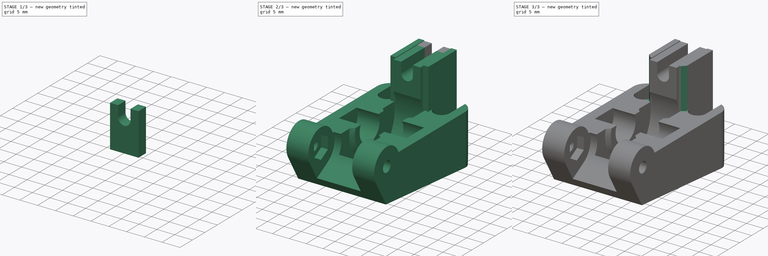
[diagram: build sequence overview — one tinted view per stage of 3, left to right]
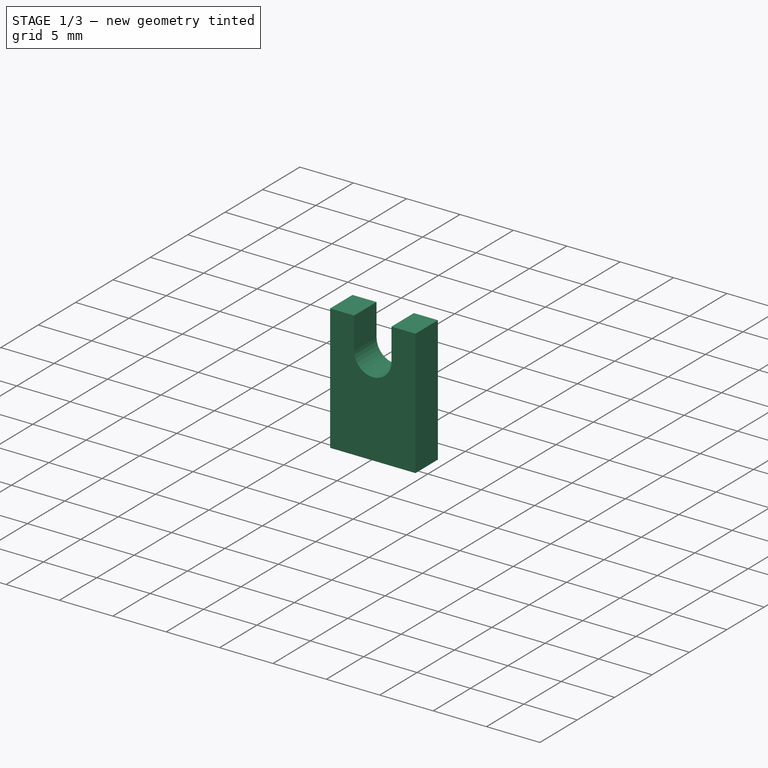
[diagram: stage 1 of 3 — iso view after this stage's code; geometry added in this stage tinted green]
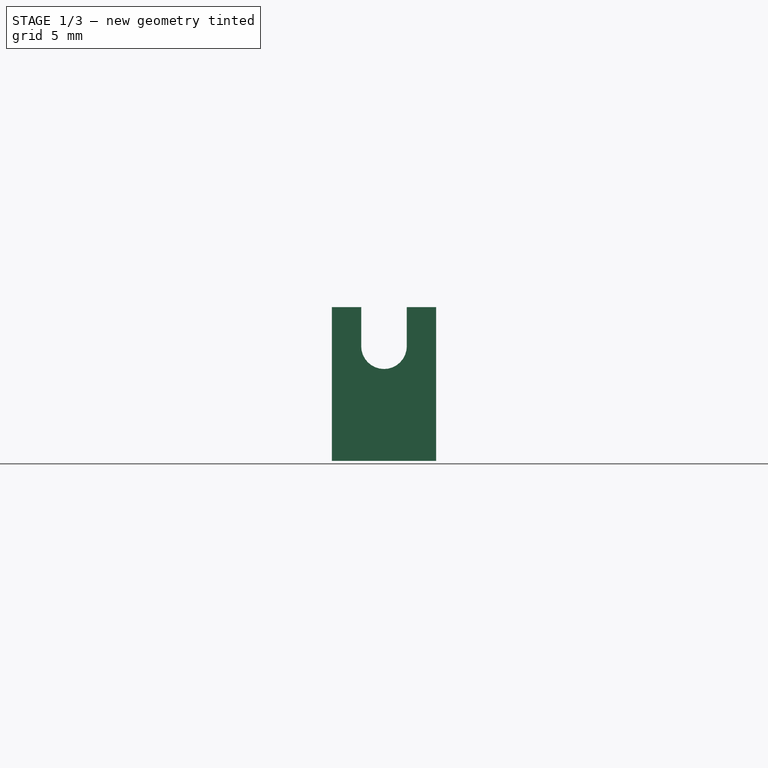
[diagram: stage 1 of 3 — front view after this stage's code; geometry added in this stage tinted green]
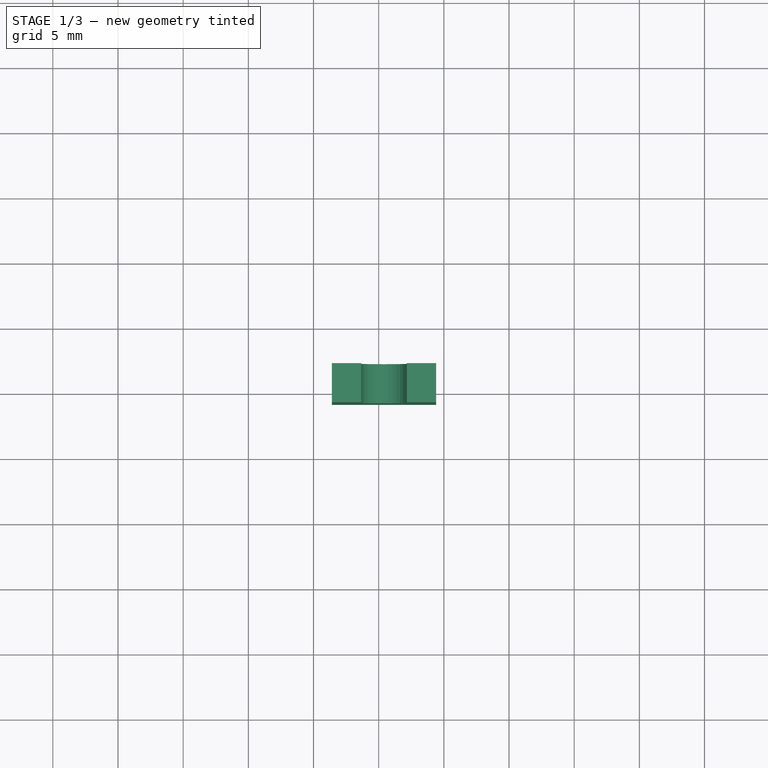
[diagram: stage 1 of 3 — top view after this stage's code; geometry added in this stage tinted green]
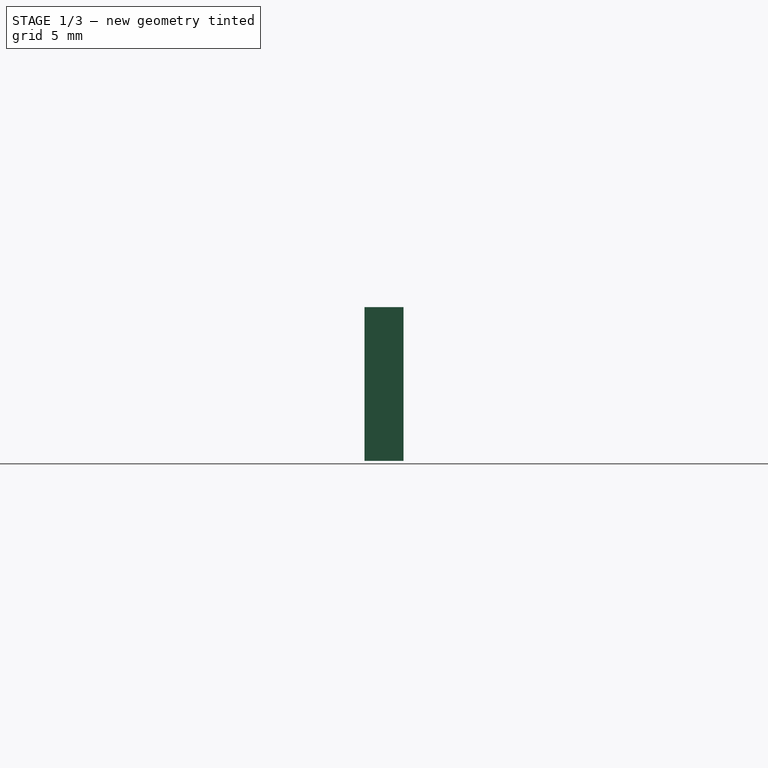
[diagram: stage 1 of 3 — right view after this stage's code; geometry added in this stage tinted green]
FCSTD DOCUMENT  (FreeCAD 0.15R4634 (Git))
Label: extruderIdler-Beefier
License: All rights reserved
LicenseURL: http://en.wikipedia.org/wiki/All_rights_reserved
objects: Sketcher::SketchObject×2, PartDesign::Pad×2, Part::FeaturePython×2, PartDesign::Chamfer×2, Part::Feature×1, Part::Revolution×1, Part::Extrusion×1, Part::MultiFuse×1
note: 14 computed .brp shape members not serialized (recipe doc carries the construction recipe); baked Part::Feature solids carry a one-line shape summary decoded from their .brp

FEATURE [Part::Feature] Solid
  shape: bbox 26 x 42.45 x 23.8 mm, 2974 faces (baked)
FEATURE [Sketcher::SketchObject] Sketch
  ExternalGeometry = -> [Solid]
  Placement = pos=(0,0,-0.006) rot=(1,0,0;3.14159rad)
  Support = -> Solid [Face2313]
  sketch-geometry (13):
    g0: LineSegment StartX=670.033 StartY=232.103 StartZ=0 EndX=667.408 EndY=232.103 EndZ=0
    g1: LineSegment StartX=667.408 StartY=232.103 StartZ=0 EndX=667.408 EndY=222.808 EndZ=0
    g2: LineSegment StartX=667.408 StartY=222.808 StartZ=0 EndX=670.033 EndY=222.808 EndZ=0
    g3: LineSegment StartX=670.033 StartY=222.808 StartZ=0 EndX=670.033 EndY=232.103 EndZ=0
    g4: LineSegment StartX=690.783 StartY=231.892 StartZ=0 EndX=693.39 EndY=231.892 EndZ=0
    g5: LineSegment StartX=693.39 StartY=231.892 StartZ=0 EndX=693.39 EndY=222.808 EndZ=0
    g6: LineSegment StartX=693.39 StartY=222.808 StartZ=0 EndX=690.783 EndY=222.808 EndZ=0
    g7: LineSegment StartX=690.783 StartY=222.808 StartZ=0 EndX=690.783 EndY=231.892 EndZ=0
    g8: LineSegment [constr] StartX=670.033 StartY=222.808 StartZ=0 EndX=690.783 EndY=222.808 EndZ=0
    g9: LineSegment StartX=674.783 StartY=225.808 StartZ=0 EndX=686.033 EndY=225.808 EndZ=0
    g10: LineSegment StartX=686.033 StartY=225.808 StartZ=0 EndX=686.033 EndY=222.808 EndZ=0
    g11: LineSegment StartX=686.033 StartY=222.808 StartZ=0 EndX=674.783 EndY=222.808 EndZ=0
    g12: LineSegment StartX=674.783 StartY=222.808 StartZ=0 EndX=674.783 EndY=225.808 EndZ=0
  constraints (34):
    c: Coincident(g0,g1)
    c: Coincident(g1,g2)
    c: Coincident(g2,g3)
    c: Coincident(g3,g0)
    c: Horizontal(g0)
    c: Horizontal(g2)
    c: Vertical(g1)
    c: Vertical(g3)
    c: PointOnObject(g0,g-9)
    c: Coincident(g4,g5)
    c: Coincident(g5,g6)
    c: Coincident(g6,g7)
    c: Coincident(g7,g4)
    c: Horizontal(g4)
    c: Horizontal(g6)
    c: Vertical(g5)
    c: Vertical(g7)
    c: PointOnObject(g4,g-8)
    c: Coincident(g8,g2)
    c: Coincident(g8,g6)
    c: Horizontal(g8)
    c: PointOnObject(g0,g-5)
    c: Coincident(g9,g10)
    c: Coincident(g10,g11)
    c: Coincident(g11,g12)
    c: Coincident(g12,g9)
    c: Horizontal(g9)
    c: Horizontal(g11)
    c: Vertical(g10)
    c: Vertical(g12)
    c: Coincident(g9,g-12)
    c: PointOnObject(g10,g8)
    c: Coincident(g9,g-11)
    c: Distance(g12) = 3
FEATURE [PartDesign::Pad] Pad
  Length = 10
  Length2 = 100
  Reversed = true
  Sketch = -> Sketch
  Type = 3
  UpToFace = -> Solid [Face501]
FEATURE [Part::FeaturePython] Facebinder001  # WARN: FeaturePython — macro-defined, semantics opaque (R4)
  Faces = -> [Pad]
FEATURE [Part::Extrusion] Extrude_Facebinder001  label="Facebinder001_Extrude"
  Base = -> Facebinder001
  Dir = (0,3,0)
  Solid = false
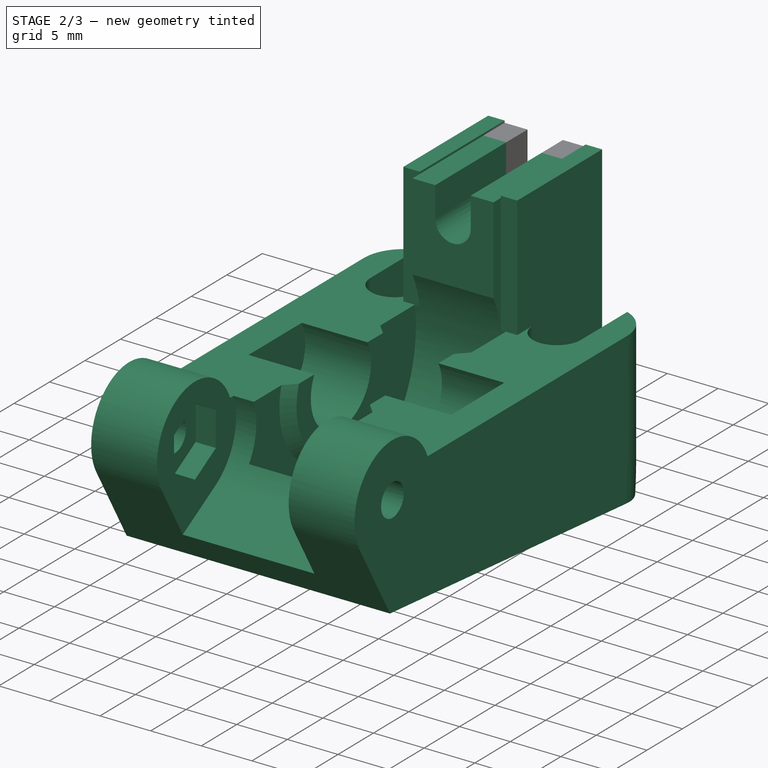
[diagram: stage 2 of 3 — iso view after this stage's code; geometry added in this stage tinted green]
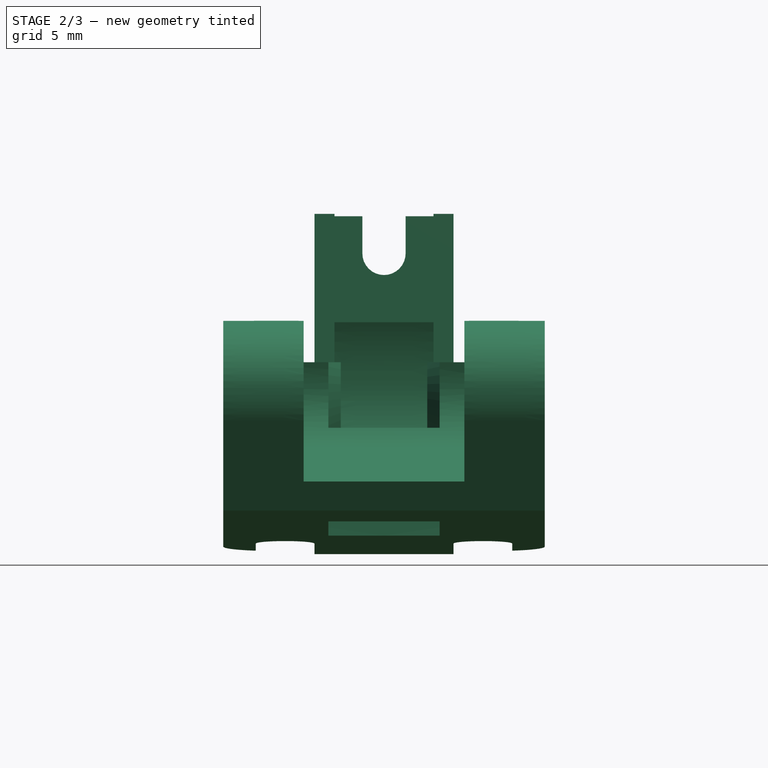
[diagram: stage 2 of 3 — front view after this stage's code; geometry added in this stage tinted green]
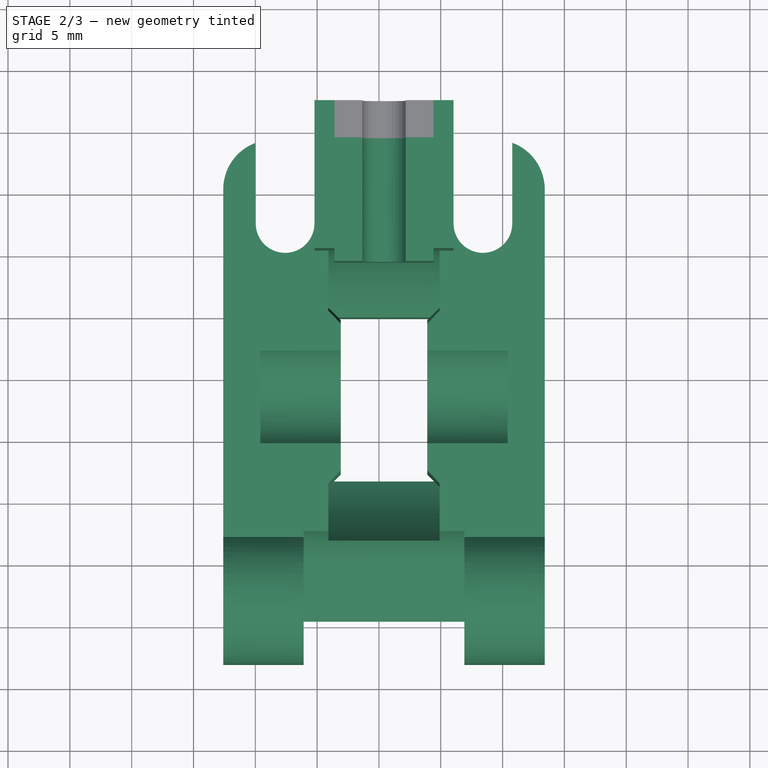
[diagram: stage 2 of 3 — top view after this stage's code; geometry added in this stage tinted green]
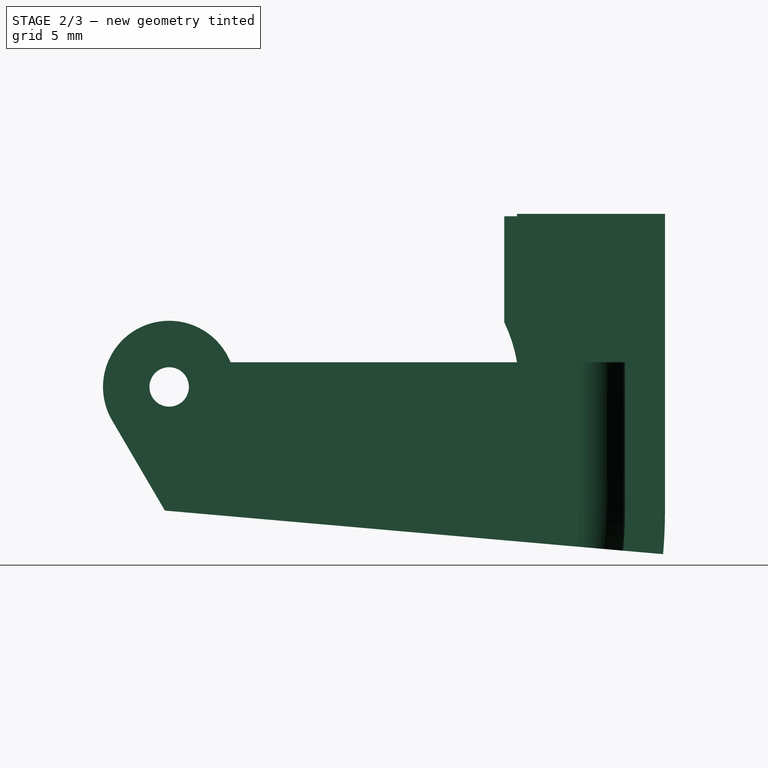
[diagram: stage 2 of 3 — right view after this stage's code; geometry added in this stage tinted green]
FEATURE [Part::FeaturePython] Facebinder  # WARN: FeaturePython — macro-defined, semantics opaque (R4)
  Faces = -> [Pad]
FEATURE [Part::Revolution] Revolve
  Angle = -5
  Axis = (1,0,0)
  Base = (682.57,-263.26,-0.01)
  Solid = true
  Source = -> Facebinder
FEATURE [Part::MultiFuse] Fusion
  Shapes = -> [Revolve,Extrude_Facebinder001,Pad]
FEATURE [Sketcher::SketchObject] Sketch001
  ExternalGeometry = -> [Fusion]
  Placement = pos=(0,0,11.994) rot=(0,0,1;0rad)
  Support = -> Fusion [Face559]
  sketch-geometry (8):
    g0: LineSegment StartX=676.408 StartY=-234.777 StartZ=0 EndX=674.783 EndY=-234.777 EndZ=0
    g1: LineSegment StartX=674.783 StartY=-234.777 StartZ=0 EndX=674.783 EndY=-222.808 EndZ=0
    g2: LineSegment StartX=674.783 StartY=-222.808 StartZ=0 EndX=676.408 EndY=-222.808 EndZ=0
    g3: LineSegment StartX=676.408 StartY=-222.808 StartZ=0 EndX=676.408 EndY=-234.777 EndZ=0
    g4: LineSegment StartX=686.033 StartY=-222.808 StartZ=0 EndX=684.408 EndY=-222.808 EndZ=0
    g5: LineSegment StartX=684.408 StartY=-222.808 StartZ=0 EndX=684.408 EndY=-234.777 EndZ=0
    g6: LineSegment StartX=684.408 StartY=-234.777 StartZ=0 EndX=686.033 EndY=-234.777 EndZ=0
    g7: LineSegment StartX=686.033 StartY=-234.777 StartZ=0 EndX=686.033 EndY=-222.808 EndZ=0
  constraints (20):
    c: Coincident(g0,g1)
    c: Coincident(g1,g2)
    c: Coincident(g2,g3)
    c: Coincident(g3,g0)
    c: Horizontal(g0)
    c: Horizontal(g2)
    c: Vertical(g1)
    c: Vertical(g3)
    c: Coincident(g0,g-4)
    c: Coincident(g1,g-7)
    c: Coincident(g4,g5)
    c: Coincident(g5,g6)
    c: Coincident(g6,g7)
    c: Coincident(g7,g4)
    c: Horizontal(g4)
    c: Horizontal(g6)
    c: Vertical(g5)
    c: Vertical(g7)
    c: Coincident(g4,g-6)
    c: Coincident(g5,g-5)
FEATURE [PartDesign::Pad] Pad001
  Length = 12
  Length2 = 100
  Sketch = -> Sketch001
  Type = 0
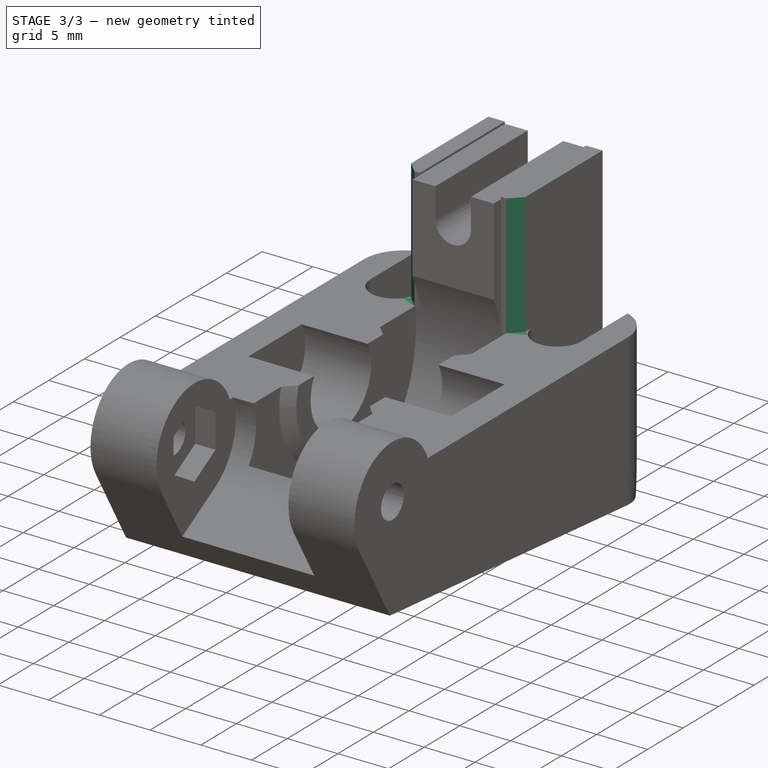
[diagram: stage 3 of 3 — iso view after this stage's code; geometry added in this stage tinted green]
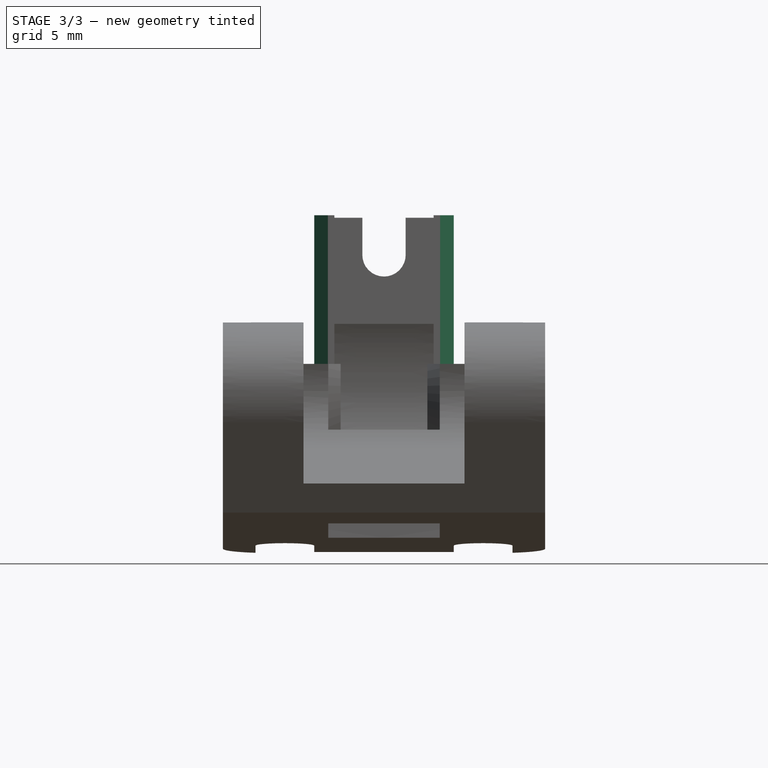
[diagram: stage 3 of 3 — front view after this stage's code; geometry added in this stage tinted green]
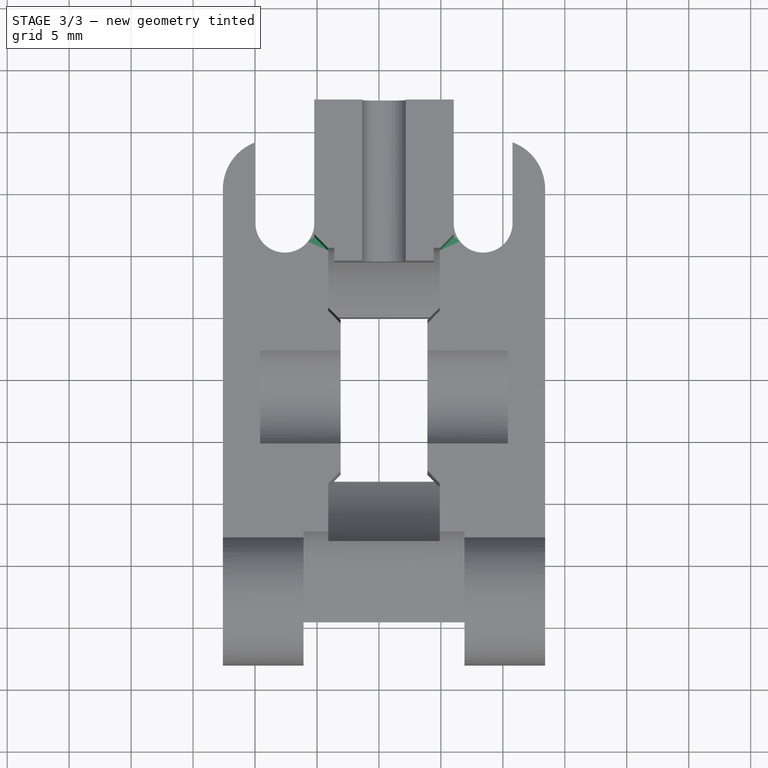
[diagram: stage 3 of 3 — top view after this stage's code; geometry added in this stage tinted green]
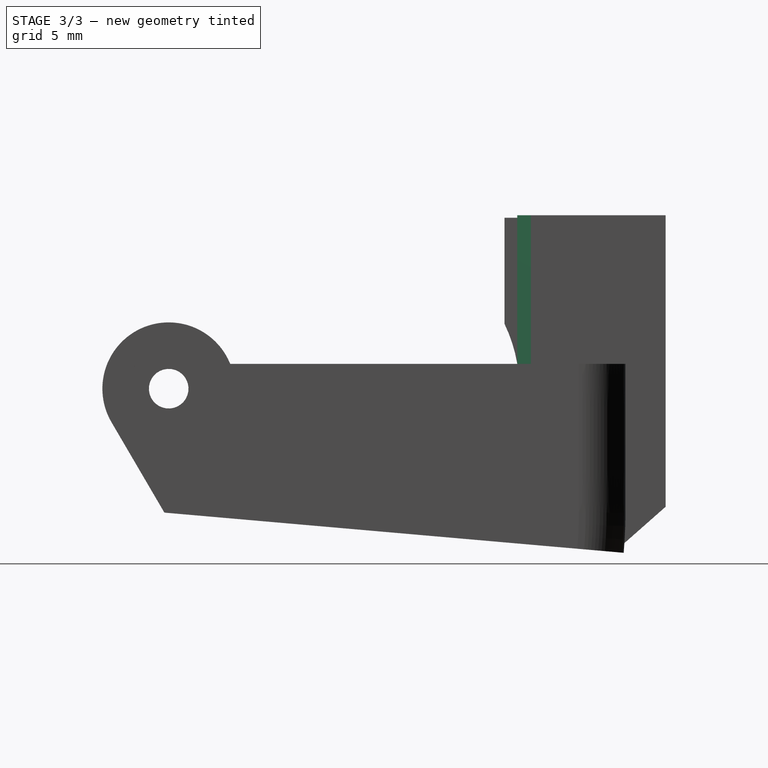
[diagram: stage 3 of 3 — right view after this stage's code; geometry added in this stage tinted green]
FEATURE [PartDesign::Chamfer] Chamfer
  Base = -> Pad001 [Edge1210,Edge1203]
  Size = 1.1
FEATURE [PartDesign::Chamfer] Chamfer001
  Base = -> Chamfer [Edge821]
  Size = 4
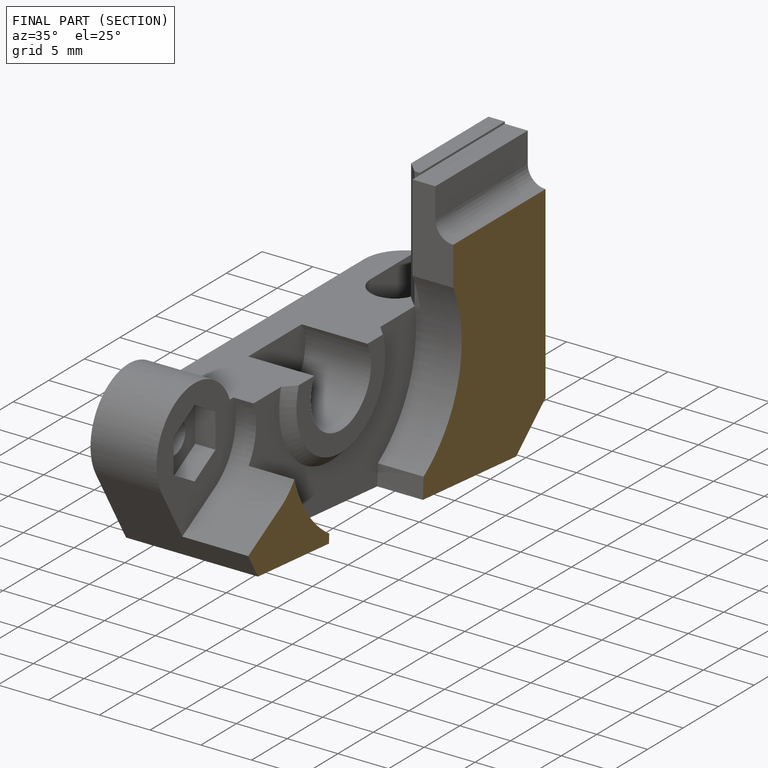
[diagram: finished part — half-section view (interior)]
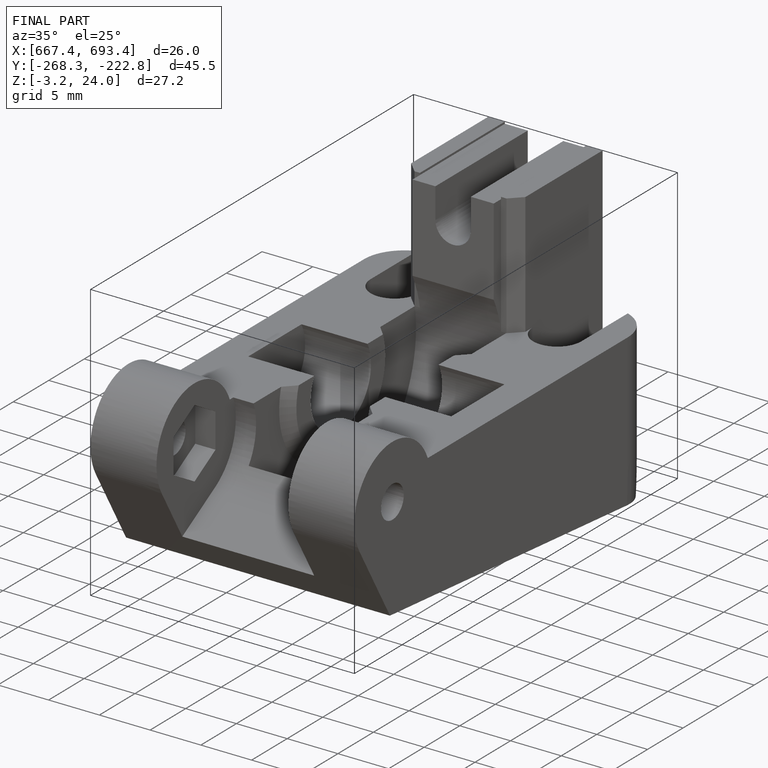
[diagram: finished part — iso view with bounding-box wireframe]
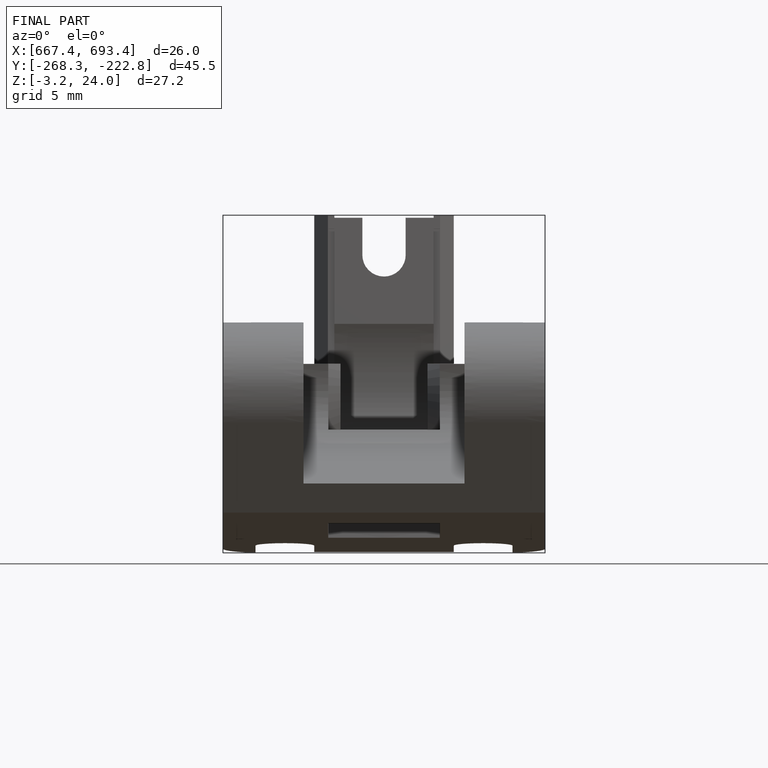
[diagram: finished part — front view with bounding-box wireframe]
